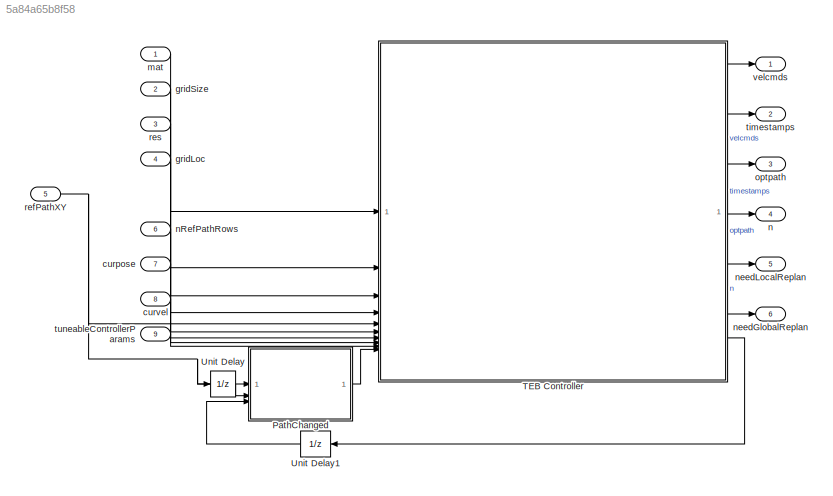
MODEL slx_5a84a65b8f58
KIND model
CONFIG AbsTol = auto
CONFIG EnableMultiTasking = off
CONFIG FixedStep = auto
CONFIG MaxStep = auto
CONFIG MinStep = auto
CONFIG RelTol = 1e-3
CONFIG SampleTimeConstraint = Unconstrained
CONFIG SolverName = FixedStepDiscrete
CONFIG StartTime = 0.0
CONFIG StopTime = 10.0
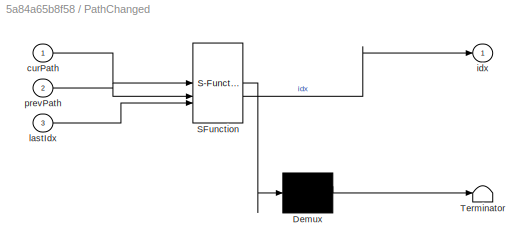
BLOCK [SubSystem] PathChanged
  ErrorFcn = Stateflow.Translate.translate
  PermitHierarchicalResolution = ExplicitOnly
  SFBlockType = MATLAB Function
  TreatAsAtomicUnit = on
BLOCK [Demux] PathChanged/ Demux 
  Outputs = 1
BLOCK [S-Function] PathChanged/ SFunction 
  EnableBusSupport = on
  FunctionName = sf_sfun
  PortCounts = [3 2]
  SFcnIsStateOwnerBlock = off
  SFunctionDeploymentMode = off
  Tag = Stateflow S-Function 1
BLOCK [Terminator] PathChanged/ Terminator 
BLOCK [Inport] PathChanged/curPath
BLOCK [Outport] PathChanged/idx
BLOCK [Inport] PathChanged/lastIdx
  Port = 3
BLOCK [Inport] PathChanged/prevPath
  Port = 2
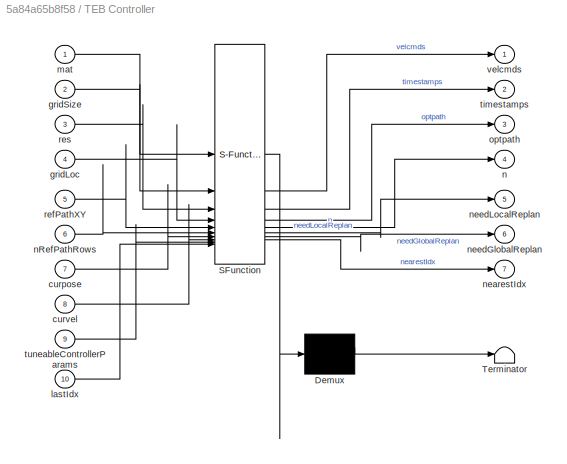
BLOCK [SubSystem] TEB Controller
  ErrorFcn = Stateflow.Translate.translate
  LibrarySourceBlock = simulink/User-Defined\nFunctions/MATLAB Function
  PermitHierarchicalResolution = ExplicitOnly
  SFBlockType = MATLAB Function
  TreatAsAtomicUnit = on
BLOCK [Demux] TEB Controller/ Demux 
  Outputs = 1
BLOCK [S-Function] TEB Controller/ SFunction 
  EnableBusSupport = on
  FunctionName = sf_sfun
  Parameters = length,nRowOutput,numIteration,referenceDeltaTime,width
  PortCounts = [10 8]
  SFcnIsStateOwnerBlock = off
  SFunctionDeploymentMode = off
  Tag = Stateflow S-Function 2
BLOCK [Terminator] TEB Controller/ Terminator 
BLOCK [Inport] TEB Controller/curpose
  Port = 7
BLOCK [Inport] TEB Controller/curvel
  Port = 8
BLOCK [Inport] TEB Controller/gridLoc
  Port = 4
BLOCK [Inport] TEB Controller/gridSize
  Port = 2
BLOCK [Inport] TEB Controller/lastIdx
  Port = 10
BLOCK [Inport] TEB Controller/mat
BLOCK [Outport] TEB Controller/n
  Port = 4
BLOCK [Inport] TEB Controller/nRefPathRows
  Port = 6
BLOCK [Outport] TEB Controller/nearestIdx
  Port = 7
BLOCK [Outport] TEB Controller/needGlobalReplan
  Port = 6
BLOCK [Outport] TEB Controller/needLocalReplan
  Port = 5
BLOCK [Outport] TEB Controller/optpath
  Port = 3
BLOCK [Inport] TEB Controller/refPathXY
  Port = 5
BLOCK [Inport] TEB Controller/res
  Port = 3
BLOCK [Outport] TEB Controller/timestamps
  Port = 2
BLOCK [Inport] TEB Controller/tuneableControllerParams
  Port = 9
BLOCK [Outport] TEB Controller/velcmds
BLOCK [UnitDelay] Unit Delay
  HasFrameUpgradeWarning = on
  SampleTime = -1
BLOCK [UnitDelay] Unit Delay1
  HasFrameUpgradeWarning = on
  NameLocation = top
  SampleTime = -1
BLOCK [Inport] curpose
  Port = 7
BLOCK [Inport] curvel
  Port = 8
BLOCK [Inport] gridLoc
  Port = 4
BLOCK [Inport] gridSize
  Port = 2
BLOCK [Inport] mat
  Interpolate = off
  OutDataTypeStr = boolean
  PortDimensions = [1201 1201]
  VarSizeSig = Yes
BLOCK [Outport] n
  OutDataTypeStr = double
  Port = 4
  PortDimensions = 1
  SamplingMode = Sample based
  SignalType = real
BLOCK [Inport] nRefPathRows
  Port = 6
BLOCK [Outport] needGlobalReplan
  OutDataTypeStr = boolean
  Port = 6
  PortDimensions = 1
  SamplingMode = Sample based
  SignalType = real
BLOCK [Outport] needLocalReplan
  OutDataTypeStr = boolean
  Port = 5
  PortDimensions = 1
  SamplingMode = Sample based
  SignalType = real
BLOCK [Outport] optpath
  OutDataTypeStr = double
  Port = 3
  PortDimensions = [1000 3]
  SamplingMode = Sample based
  SignalType = real
BLOCK [Inport] refPathXY
  Interpolate = off
  Port = 5
  PortDimensions = [maxRefPathLen 3]
BLOCK [Inport] res
  Port = 3
BLOCK [Outport] timestamps
  OutDataTypeStr = double
  Port = 2
  PortDimensions = [1000 1]
  SamplingMode = Sample based
  SignalType = real
BLOCK [Inport] tuneableControllerParams
  OutDataTypeStr = Bus: controller_bus
  Port = 9
BLOCK [Outport] velcmds
  OutDataTypeStr = double
  PortDimensions = [1000 2]
  SamplingMode = Sample based
  SignalType = real
LINE PathChanged:1 -> TEB Controller:10
LINE TEB Controller:1 -> velcmds:1
LINE TEB Controller:2 -> timestamps:1
LINE TEB Controller:3 -> optpath:1
LINE TEB Controller:4 -> n:1
LINE TEB Controller:5 -> needLocalReplan:1
LINE TEB Controller:6 -> needGlobalReplan:1
LINE TEB Controller:7 -> Unit Delay1:1
LINE Unit Delay1:1 -> PathChanged:3
LINE Unit Delay:1 -> PathChanged:2
LINE curpose:1 -> TEB Controller:7
LINE curvel:1 -> TEB Controller:8
LINE gridLoc:1 -> TEB Controller:4
LINE gridSize:1 -> TEB Controller:2
LINE mat:1 -> TEB Controller:1
LINE nRefPathRows:1 -> TEB Controller:6
NET refPathXY:1 -> PathChanged:1, TEB Controller:5, Unit Delay:1
LINE res:1 -> TEB Controller:3
LINE tuneableControllerParams:1 -> TEB Controller:9
note: NET lines group one-source signal fan-out (src -> all destinations, sorted); 1:1 wires keep LINE
CHART PathChanged states=1 transitions=1
  STATE_LABEL 'eML_blk_kernel()'
  STATE_LABEL 'SCRIPT:\nfunction idx = PathChanged(curPath, prevPath, lastIdx)\n%PathChanged Reset the nearest index when new path has been provided\n    if ~isequal(curPath,prevPath)\n        idx = 1;\n    else\n        idx = lastIdx;\n    end\nend'
CHART TEB Controller states=1 transitions=1
  STATE_LABEL 'eML_blk_kernel()'
  STATE_LABEL 'SCRIPT:\nfunction [velcmds,timestamps,optpath,n,needLocalReplan,needGlobalReplan,nearestIdx] = tebControllerBlock(mat, gridSize, res, ...\n    gridLoc, refPathXY, nRefPathRows, curpose, curvel, tuneableControllerParams, ...\n    length, width, numIteration, referenceDeltaTime, nRowOutput, lastIdx)\n    \n    velcmds = nan(nRowOutput,2);\n    timestamps = nan(nRowOutput,1);\n    optpath = nan(nRowOutput,3...<+627ch>'
CHART  states=0 transitions=0
CHART  states=0 transitions=0
